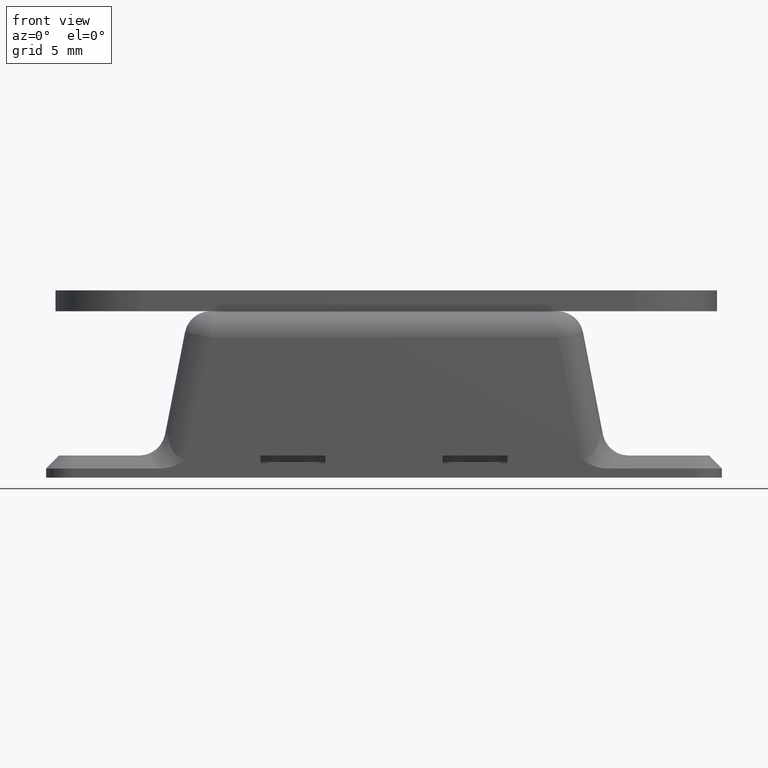
[diagram: clean part render]
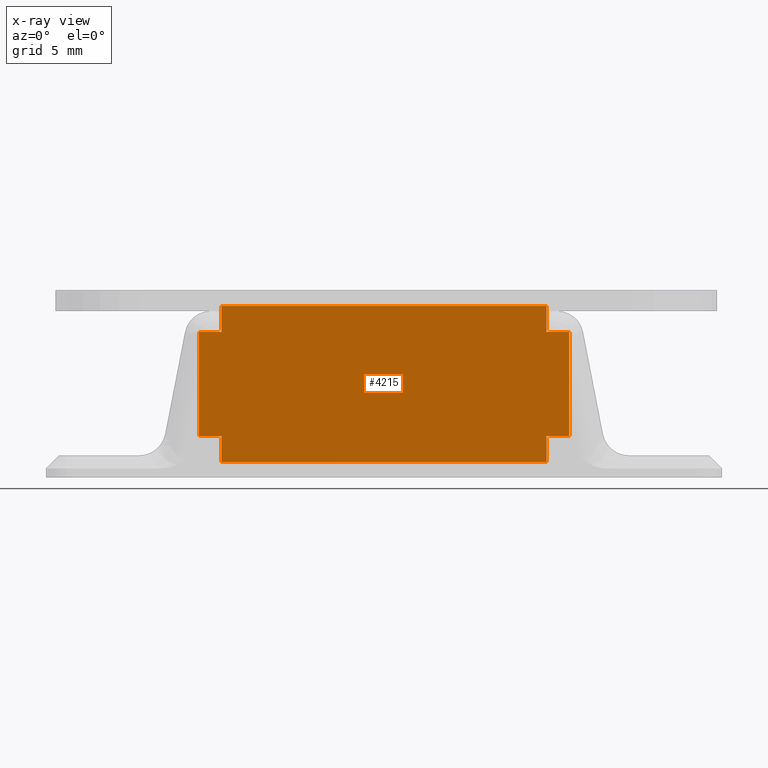
[diagram: x-ray — body ghosted, one internal face saturated and labeled with its STEP entity id]
A machine part, front view, then the same camera in x-ray: the body is ghosted and one INTERNAL B-rep face — a face not visible from any outside direction — is saturated and labeled: STEP entity #4215.
In plain terms, the highlighted planar face has unit normal (0, 1, 0).
Its self-contained STEP definition (entity closure, byte-faithful):
#491=FACE_OUTER_BOUND('',#739,.T.);
#739=EDGE_LOOP('',(#3626,#3627,#3628,#3629,#3630,#3631,#3632,#3633,#3634,
#3635,#3636,#3637));
#1102=LINE('',#7305,#1542);
#1106=LINE('',#7313,#1546);
#1109=LINE('',#7320,#1549);
#1113=LINE('',#7328,#1553);
#1116=LINE('',#7335,#1556);
#1120=LINE('',#7343,#1560);
#1123=LINE('',#7350,#1563);
#1127=LINE('',#7358,#1567);
#1130=LINE('',#7363,#1570);
#1132=LINE('',#7366,#1572);
#1133=LINE('',#7367,#1573);
#1134=LINE('',#7368,#1574);
#1542=VECTOR('',#5486,1.75);
#1546=VECTOR('',#5492,2.);
#1549=VECTOR('',#5497,2.);
#1553=VECTOR('',#5503,1.75);
#1556=VECTOR('',#5508,1.75);
#1560=VECTOR('',#5514,2.);
#1563=VECTOR('',#5519,2.);
#1567=VECTOR('',#5525,1.75);
#1570=VECTOR('',#5530,7.99999999999999);
#1572=VECTOR('',#5534,25.);
#1573=VECTOR('',#5535,7.99999999999999);
#1574=VECTOR('',#5536,25.);
#1970=VERTEX_POINT('',#7303);
#1971=VERTEX_POINT('',#7304);
#1974=VERTEX_POINT('',#7312);
#1976=VERTEX_POINT('',#7318);
#1977=VERTEX_POINT('',#7319);
#1980=VERTEX_POINT('',#7327);
#1982=VERTEX_POINT('',#7333);
#1983=VERTEX_POINT('',#7334);
#1986=VERTEX_POINT('',#7342);
#1988=VERTEX_POINT('',#7348);
#1989=VERTEX_POINT('',#7349);
#1992=VERTEX_POINT('',#7357);
#2528=EDGE_CURVE('',#1970,#1971,#1102,.T.);
#2532=EDGE_CURVE('',#1971,#1974,#1106,.T.);
#2535=EDGE_CURVE('',#1976,#1977,#1109,.T.);
#2539=EDGE_CURVE('',#1977,#1980,#1113,.T.);
#2542=EDGE_CURVE('',#1982,#1983,#1116,.T.);
#2546=EDGE_CURVE('',#1986,#1982,#1120,.T.);
#2549=EDGE_CURVE('',#1988,#1989,#1123,.T.);
#2553=EDGE_CURVE('',#1992,#1988,#1127,.T.);
#2556=EDGE_CURVE('',#1970,#1983,#1130,.T.);
#2558=EDGE_CURVE('',#1974,#1976,#1132,.T.);
#2559=EDGE_CURVE('',#1992,#1980,#1133,.T.);
#2560=EDGE_CURVE('',#1989,#1986,#1134,.T.);
#3626=ORIENTED_EDGE('',*,*,#2528,.T.);
#3627=ORIENTED_EDGE('',*,*,#2532,.T.);
#3628=ORIENTED_EDGE('',*,*,#2558,.T.);
#3629=ORIENTED_EDGE('',*,*,#2535,.T.);
#3630=ORIENTED_EDGE('',*,*,#2539,.T.);
#3631=ORIENTED_EDGE('',*,*,#2559,.F.);
#3632=ORIENTED_EDGE('',*,*,#2553,.T.);
#3633=ORIENTED_EDGE('',*,*,#2549,.T.);
#3634=ORIENTED_EDGE('',*,*,#2560,.T.);
#3635=ORIENTED_EDGE('',*,*,#2546,.T.);
#3636=ORIENTED_EDGE('',*,*,#2542,.T.);
#3637=ORIENTED_EDGE('',*,*,#2556,.F.);
#3990=PLANE('',#4563);
#4215=ADVANCED_FACE('',(#491),#3990,.T.);
#4563=AXIS2_PLACEMENT_3D('',#7365,#5532,#5533);
#5486=DIRECTION('',(-1.,0.,-3.1720657846433E-16));
#5492=DIRECTION('',(0.,0.,-1.));
#5497=DIRECTION('',(0.,0.,1.));
#5503=DIRECTION('',(-1.,0.,3.1720657846433E-16));
#5508=DIRECTION('',(1.,0.,0.));
#5514=DIRECTION('',(0.,0.,-1.));
#5519=DIRECTION('',(0.,0.,1.));
#5525=DIRECTION('',(1.,0.,0.));
#5530=DIRECTION('',(0.,0.,1.));
#5532=DIRECTION('center_axis',(0.,1.,0.));
#5533=DIRECTION('ref_axis',(0.,0.,1.));
#5534=DIRECTION('',(-1.,0.,0.));
#5535=DIRECTION('',(0.,0.,-1.));
#5536=DIRECTION('',(1.,0.,0.));
#7303=CARTESIAN_POINT('',(14.25,-4.7,3.20000000000001));
#7304=CARTESIAN_POINT('',(12.5,-4.7,3.20000000000001));
#7305=CARTESIAN_POINT('',(6.25,-4.7,3.20000000000001));
#7312=CARTESIAN_POINT('',(12.5,-4.7,1.20000000000001));
#7313=CARTESIAN_POINT('',(12.5,-4.7,1.20000000000001));
#7318=CARTESIAN_POINT('',(-12.5,-4.7,1.20000000000001));
#7319=CARTESIAN_POINT('',(-12.5,-4.7,3.20000000000001));
#7320=CARTESIAN_POINT('',(-12.5,-4.7,2.20000000000001));
#7327=CARTESIAN_POINT('',(-14.25,-4.7,3.20000000000001));
#7328=CARTESIAN_POINT('',(-7.125,-4.7,3.20000000000001));
#7333=CARTESIAN_POINT('',(12.5,-4.7,11.2));
#7334=CARTESIAN_POINT('',(14.25,-4.7,11.2));
#7335=CARTESIAN_POINT('',(7.125,-4.7,11.2));
#7342=CARTESIAN_POINT('',(12.5,-4.7,13.2));
#7343=CARTESIAN_POINT('',(12.5,-4.7,6.20000000000001));
#7348=CARTESIAN_POINT('',(-12.5,-4.7,11.2));
#7349=CARTESIAN_POINT('',(-12.5,-4.7,13.2));
#7350=CARTESIAN_POINT('',(-12.5,-4.7,7.20000000000001));
#7357=CARTESIAN_POINT('',(-14.25,-4.7,11.2));
#7358=CARTESIAN_POINT('',(-6.25,-4.7,11.2));
#7363=CARTESIAN_POINT('',(14.25,-4.7,13.2));
#7365=CARTESIAN_POINT('Origin',(0.,-4.7,1.20000000000001));
#7366=CARTESIAN_POINT('',(0.,-4.7,1.20000000000001));
#7367=CARTESIAN_POINT('',(-14.25,-4.7,13.2));
#7368=CARTESIAN_POINT('',(0.,-4.7,13.2));